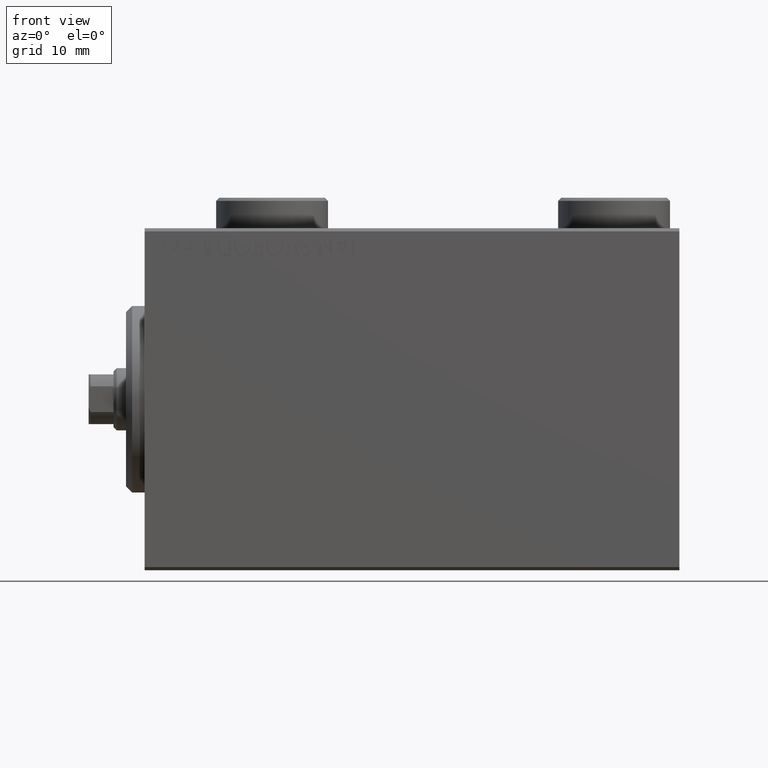
[diagram: clean part render]
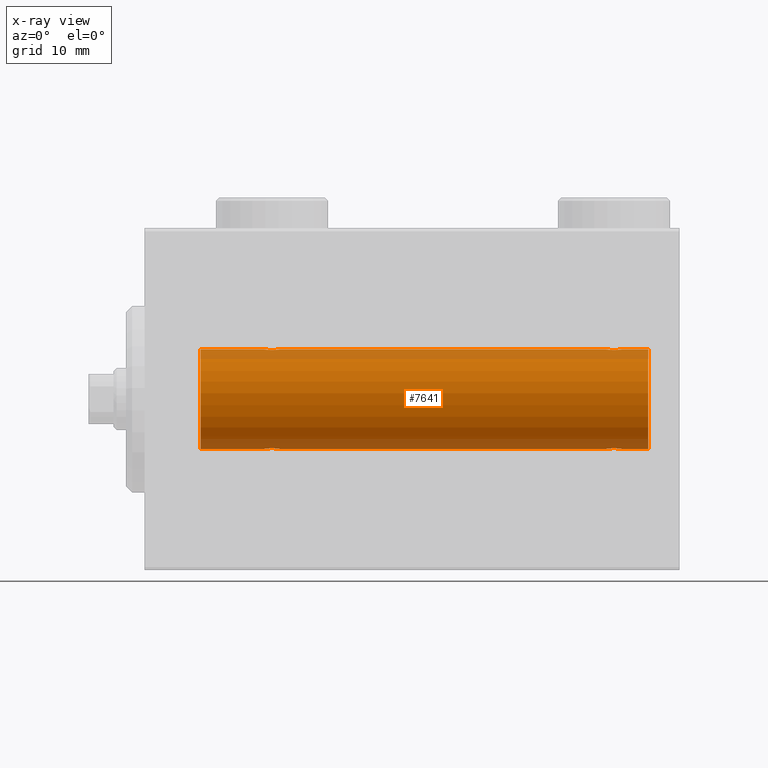
[diagram: x-ray — body ghosted, one internal face saturated and labeled with its STEP entity id]
A machine part, front view, then the same camera in x-ray: the body is ghosted and one INTERNAL B-rep face — a face not visible from any outside direction — is saturated and labeled: STEP entity #7641.
In plain terms, the highlighted cylindrical surface (partial cylindrical patch) has radius 8 mm, axis along (-1, -0, -0).
Its self-contained STEP definition (entity closure, byte-faithful):
#590 = CARTESIAN_POINT ( 'NONE',  ( 74.25000000000001421, -4.052102368803510290E-23, 7.999999999999998224 ) ) ;
#1038 = CARTESIAN_POINT ( 'NONE',  ( 74.87285837165016744, -1.084361243153322940, 7.926301147147063908 ) ) ;
#2012 = CARTESIAN_POINT ( 'NONE',  ( 76.75000000000001421, -0.1632520343443081834, -8.000000000000000000 ) ) ;
#2148 = CARTESIAN_POINT ( 'NONE',  ( 19.87056207267771413, -1.092287957405118970, -7.925333492638526600 ) ) ;
#2716 = CARTESIAN_POINT ( 'NONE',  ( 21.75000000000000711, -0.1654128203352893955, 8.000000000000001776 ) ) ;
#3151 = CARTESIAN_POINT ( 'NONE',  ( 76.49958686675914521, -0.7680324342712141483, -7.963892330120035723 ) ) ;
#3176 = CARTESIAN_POINT ( 'NONE',  ( 19.67312100220859605, -0.9409612394163517912, 7.944680966683013601 ) ) ;
#3375 = CARTESIAN_POINT ( 'NONE',  ( 75.66599605016013186, -1.249894643705230068, -7.901756981264361102 ) ) ;
#3401 = CARTESIAN_POINT ( 'NONE',  ( 20.17169333885885862, -1.217212176555599878, 7.907113222863031865 ) ) ;
#3695 = VECTOR ( 'NONE', #11106, 1000.000000000000000 ) ;
#3817 = CARTESIAN_POINT ( 'NONE',  ( 76.49841755665750043, -0.7695044314719109435, 7.963745725343518878 ) ) ;
#3822 = B_SPLINE_CURVE_WITH_KNOTS ( 'NONE', 3,
 ( #26267, #29268, #19362, #39669, #27807, #38433, #20443, #26719, #5582, #20887, #14009, #6437, #41892, #2148, #17225, #40805, #31274, #42108, #12492, #9883 ),
 .UNSPECIFIED., .F., .F.,
 ( 4, 2, 2, 2, 2, 2, 2, 2, 2, 4 ),
 ( 0.003914068143704951298, 0.004403205918210062117, 0.004892343692715172936, 0.005136912579967725309, 0.005381481467220276815, 0.005870619241725390236, 0.006359757016230503657, 0.006848894790735617077, 0.007338032565240730498, 0.007827170339745843919 ),
 .UNSPECIFIED. ) ;
#3904 = LINE ( 'NONE', #24368, #4893 ) ;
#3968 = CARTESIAN_POINT ( 'NONE',  ( 8.999999999999994671, 0.000000000000000000, 0.000000000000000000 ) ) ;
#4194 = DIRECTION ( 'NONE',  ( 0.000000000000000000, 0.000000000000000000, 1.000000000000000000 ) ) ;
#4239 = AXIS2_PLACEMENT_3D ( 'NONE', #11514, #11282, #22286 ) ;
#4702 = CARTESIAN_POINT ( 'NONE',  ( 74.50041313324086900, -0.7680324342712208097, 7.963892330120033947 ) ) ;
#4893 = VECTOR ( 'NONE', #27832, 1000.000000000000000 ) ;
#5137 = CARTESIAN_POINT ( 'NONE',  ( 21.75000000000000355, 2.367508772235555199E-16, 7.999999999999998224 ) ) ;
#5447 = CARTESIAN_POINT ( 'NONE',  ( 76.75000000000001421, 9.797173987969553159E-16, -7.999999999999998224 ) ) ;
#5582 = CARTESIAN_POINT ( 'NONE',  ( 21.05544625654724200, -1.122809931695431640, -7.920878051565290789 ) ) ;
#5846 = LINE ( 'NONE', #29996, #13302 ) ;
#6437 = CARTESIAN_POINT ( 'NONE',  ( 20.33559448851098850, -1.250104850332076634, -7.901723728054487417 ) ) ;
#6598 = CARTESIAN_POINT ( 'NONE',  ( 74.73184514123552447, -0.9994562523959246159, -7.938165420771276182 ) ) ;
#7023 = EDGE_CURVE ( 'NONE', #22198, #30068, #17386, .T. ) ;
#7271 = CARTESIAN_POINT ( 'NONE',  ( 76.71666607977185492, -0.3297258132310484924, 7.994620111903502746 ) ) ;
#7438 = VERTEX_POINT ( 'NONE', #21875 ) ;
#7485 = CARTESIAN_POINT ( 'NONE',  ( 74.67312100220860316, -0.9409612394163545668, 7.944680966683010936 ) ) ;
#7641 = ADVANCED_FACE ( 'NONE', ( #16591 ), #37782, .F. ) ;
#7708 = CARTESIAN_POINT ( 'NONE',  ( 74.73732994206311275, -0.9937204387496767488, 7.938174152191988853 ) ) ;
#7770 = DIRECTION ( 'NONE',  ( -1.000000000000000000, -0.000000000000000000, -0.000000000000000000 ) ) ;
#7922 = CIRCLE ( 'NONE', #4239, 7.999999999999998224 ) ;
#7980 = VECTOR ( 'NONE', #7770, 1000.000000000000000 ) ;
#8323 = CARTESIAN_POINT ( 'NONE',  ( 81.00000000000000000, 0.000000000000000000, 7.999999999999998224 ) ) ;
#9883 = CARTESIAN_POINT ( 'NONE',  ( 19.25000000000000711, -3.107364149877583097E-15, -7.999999999999998224 ) ) ;
#10071 = CARTESIAN_POINT ( 'NONE',  ( 20.82701716371747480, -1.217515856520238637, 7.907063872927298398 ) ) ;
#10270 = CARTESIAN_POINT ( 'NONE',  ( 75.17298283628255717, -1.217515856520248407, -7.907063872927295733 ) ) ;
#10883 = DIRECTION ( 'NONE',  ( -1.000000000000000000, -0.000000000000000000, -0.000000000000000000 ) ) ;
#10932 = CARTESIAN_POINT ( 'NONE',  ( 75.82701716371747125, -1.217515856520240192, 7.907063872927293957 ) ) ;
#11106 = DIRECTION ( 'NONE',  ( -1.000000000000000000, -0.000000000000000000, -0.000000000000000000 ) ) ;
#11146 = VERTEX_POINT ( 'NONE', #38666 ) ;
#11163 = CARTESIAN_POINT ( 'NONE',  ( 81.00000000000000000, 9.797174393178823685E-16, -7.999999999999998224 ) ) ;
#11282 = DIRECTION ( 'NONE',  ( -1.000000000000000000, 0.000000000000000000, 0.000000000000000000 ) ) ;
#11514 = CARTESIAN_POINT ( 'NONE',  ( 81.00000000000000000, 0.000000000000000000, 0.000000000000000000 ) ) ;
#11611 = CARTESIAN_POINT ( 'NONE',  ( 76.75000000000001421, 3.826567769925454797E-16, 7.999999999999998224 ) ) ;
#11779 = LINE ( 'NONE', #8323, #18244 ) ;
#12396 = B_SPLINE_CURVE_WITH_KNOTS ( 'NONE', 3,
 ( #38388, #29903, #31458, #37923, #45539, #3176, #44855, #37696, #31005, #3401, #13512, #13965, #10071, #44001, #41612, #13063, #38159, #27076, #2716, #22764 ),
 .UNSPECIFIED., .F., .F.,
 ( 4, 2, 2, 2, 2, 2, 2, 2, 2, 4 ),
 ( 0.003914068143704974717, 0.004403205918210087270, 0.004892343692715199824, 0.005136912579967756534, 0.005381481467220313245, 0.005870619241725426665, 0.006359757016230540086, 0.006848894790735652639, 0.007338032565240766060, 0.007827170339745878613 ),
 .UNSPECIFIED. ) ;
#12492 = CARTESIAN_POINT ( 'NONE',  ( 19.25000000000000711, -0.1654128203352910609, -7.999999999999998224 ) ) ;
#12518 = VECTOR ( 'NONE', #10883, 1000.000000000000000 ) ;
#13063 = CARTESIAN_POINT ( 'NONE',  ( 21.49841755665748622, -0.7695044314719063916, 7.963745725343518878 ) ) ;
#13302 = VECTOR ( 'NONE', #37384, 1000.000000000000000 ) ;
#13512 = CARTESIAN_POINT ( 'NONE',  ( 20.33400394983990722, -1.249894643705219410, 7.901756981264364654 ) ) ;
#13712 = CARTESIAN_POINT ( 'NONE',  ( 74.50158244334251378, -0.7695044314719188261, -7.963745725343513548 ) ) ;
#13940 = CARTESIAN_POINT ( 'NONE',  ( 76.12714162834984677, -1.084361243153331378, -7.926301147147065684 ) ) ;
#13965 = CARTESIAN_POINT ( 'NONE',  ( 20.66440551148902571, -1.250104850332075523, 7.901723728054487417 ) ) ;
#14009 = CARTESIAN_POINT ( 'NONE',  ( 20.66599605016009988, -1.249894643705219854, -7.901756981264366431 ) ) ;
#14046 = VERTEX_POINT ( 'NONE', #5137 ) ;
#14489 = EDGE_CURVE ( 'NONE', #26878, #14046, #12396, .T. ) ;
#15283 = VERTEX_POINT ( 'NONE', #44011 ) ;
#15473 = ORIENTED_EDGE ( 'NONE', *, *, #16362, .T. ) ;
#15566 = CARTESIAN_POINT ( 'NONE',  ( 81.00000000000000000, 9.797174393178823685E-16, -7.999999999999998224 ) ) ;
#15567 = EDGE_LOOP ( 'NONE', ( #22168, #15473, #29118, #24333, #18260, #35001, #15631, #26792, #17274, #25625, #17524, #33454 ) ) ;
#15631 = ORIENTED_EDGE ( 'NONE', *, *, #30883, .T. ) ;
#16362 = EDGE_CURVE ( 'NONE', #34382, #34113, #36764, .T. ) ;
#16591 = FACE_OUTER_BOUND ( 'NONE', #15567, .T. ) ;
#16700 = CARTESIAN_POINT ( 'NONE',  ( 76.26267005793691567, -0.9937204387496841873, -7.938174152191988853 ) ) ;
#17225 = CARTESIAN_POINT ( 'NONE',  ( 19.73184514123549249, -0.9994562523959139577, -7.938165420771276182 ) ) ;
#17274 = ORIENTED_EDGE ( 'NONE', *, *, #14489, .T. ) ;
#17386 = B_SPLINE_CURVE_WITH_KNOTS ( 'NONE', 3,
 ( #590, #17816, #36232, #18275, #4702, #7485, #7708, #1038, #42706, #43162, #28627, #21473, #10932, #31654, #42482, #3817, #32539, #7271, #31865, #11611 ),
 .UNSPECIFIED., .F., .F.,
 ( 4, 2, 2, 2, 2, 2, 2, 2, 2, 4 ),
 ( 0.003914068143704953900, 0.004403205918210113291, 0.004892343692715272682, 0.005136912579967838066, 0.005381481467220403450, 0.005870619241725495187, 0.006359757016230586923, 0.006848894790735679527, 0.007338032565240772132, 0.007827170339745864736 ),
 .UNSPECIFIED. ) ;
#17524 = ORIENTED_EDGE ( 'NONE', *, *, #7023, .T. ) ;
#17816 = CARTESIAN_POINT ( 'NONE',  ( 74.25000000000001421, -0.1632520343443091548, 7.999999999999998224 ) ) ;
#17992 = CARTESIAN_POINT ( 'NONE',  ( 81.00000000000000000, 0.000000000000000000, 7.999999999999998224 ) ) ;
#18187 = VERTEX_POINT ( 'NONE', #26886 ) ;
#18244 = VECTOR ( 'NONE', #22318, 1000.000000000000000 ) ;
#18260 = ORIENTED_EDGE ( 'NONE', *, *, #34822, .T. ) ;
#18275 = CARTESIAN_POINT ( 'NONE',  ( 74.40749082144729698, -0.6288424646912691429, 7.976670562295704592 ) ) ;
#19362 = CARTESIAN_POINT ( 'NONE',  ( 21.71715712019488009, -0.3279446529214856687, -7.994696267489723951 ) ) ;
#19643 = VERTEX_POINT ( 'NONE', #35389 ) ;
#20443 = CARTESIAN_POINT ( 'NONE',  ( 21.26267005793691212, -0.9937204387496720859, -7.938174152191990629 ) ) ;
#20887 = CARTESIAN_POINT ( 'NONE',  ( 20.82830666114114848, -1.217212176555599434, -7.907113222863026536 ) ) ;
#20920 = EDGE_CURVE ( 'NONE', #26878, #18187, #45002, .T. ) ;
#20970 = EDGE_CURVE ( 'NONE', #19643, #11146, #25338, .T. ) ;
#21223 = CARTESIAN_POINT ( 'NONE',  ( 19.25000000000000000, -4.052102368803510290E-23, 7.999999999999998224 ) ) ;
#21473 = CARTESIAN_POINT ( 'NONE',  ( 75.66440551148903637, -1.250104850332079520, 7.901723728054485640 ) ) ;
#21536 = AXIS2_PLACEMENT_3D ( 'NONE', #3968, #28112, #4194 ) ;
#21875 = CARTESIAN_POINT ( 'NONE',  ( 81.00000000000000000, 0.000000000000000000, 7.999999999999998224 ) ) ;
#22168 = ORIENTED_EDGE ( 'NONE', *, *, #41339, .F. ) ;
#22198 = VERTEX_POINT ( 'NONE', #24323 ) ;
#22286 = DIRECTION ( 'NONE',  ( 0.000000000000000000, 0.000000000000000000, 1.000000000000000000 ) ) ;
#22318 = DIRECTION ( 'NONE',  ( -1.000000000000000000, -0.000000000000000000, -0.000000000000000000 ) ) ;
#22764 = CARTESIAN_POINT ( 'NONE',  ( 21.75000000000000355, 2.367508772235555199E-16, 7.999999999999998224 ) ) ;
#22851 = EDGE_CURVE ( 'NONE', #7438, #30068, #5846, .T. ) ;
#23252 = DIRECTION ( 'NONE',  ( -1.000000000000000000, -0.000000000000000000, -0.000000000000000000 ) ) ;
#24271 = CARTESIAN_POINT ( 'NONE',  ( 74.28333392022811665, -0.3297258132310611489, -7.994620111903500970 ) ) ;
#24323 = CARTESIAN_POINT ( 'NONE',  ( 74.25000000000001421, -4.052102368803510290E-23, 7.999999999999998224 ) ) ;
#24333 = ORIENTED_EDGE ( 'NONE', *, *, #20970, .T. ) ;
#24368 = CARTESIAN_POINT ( 'NONE',  ( 81.00000000000000000, 9.797174393178823685E-16, -7.999999999999998224 ) ) ;
#24489 = CARTESIAN_POINT ( 'NONE',  ( 76.05544625654724200, -1.122809931695437413, -7.920878051565288125 ) ) ;
#25338 = LINE ( 'NONE', #39424, #12518 ) ;
#25625 = ORIENTED_EDGE ( 'NONE', *, *, #43264, .F. ) ;
#26267 = CARTESIAN_POINT ( 'NONE',  ( 21.75000000000000355, 9.797173987965608855E-16, -7.999999999999998224 ) ) ;
#26288 = CARTESIAN_POINT ( 'NONE',  ( 76.75000000000001421, 9.797173987969553159E-16, -7.999999999999998224 ) ) ;
#26719 = CARTESIAN_POINT ( 'NONE',  ( 21.12714162834985387, -1.084361243153318721, -7.926301147147063908 ) ) ;
#26792 = ORIENTED_EDGE ( 'NONE', *, *, #20920, .F. ) ;
#26878 = VERTEX_POINT ( 'NONE', #21223 ) ;
#26886 = CARTESIAN_POINT ( 'NONE',  ( 8.999999999999994671, 0.000000000000000000, 7.999999999999998224 ) ) ;
#27076 = CARTESIAN_POINT ( 'NONE',  ( 21.71666607977187269, -0.3297258132310499357, 7.994620111903506299 ) ) ;
#27501 = CARTESIAN_POINT ( 'NONE',  ( 74.25000000000001421, -1.276489185009471567E-14, -7.999999999999998224 ) ) ;
#27731 = CARTESIAN_POINT ( 'NONE',  ( 74.40834966532098349, -0.6303134207468096273, -7.976551562999471656 ) ) ;
#27807 = CARTESIAN_POINT ( 'NONE',  ( 21.49958686675913810, -0.7680324342712174790, -7.963892330120039276 ) ) ;
#27832 = DIRECTION ( 'NONE',  ( -1.000000000000000000, -0.000000000000000000, -0.000000000000000000 ) ) ;
#28112 = DIRECTION ( 'NONE',  ( -1.000000000000000000, 0.000000000000000000, 0.000000000000000000 ) ) ;
#28415 = AXIS2_PLACEMENT_3D ( 'NONE', #44487, #23252, #33867 ) ;
#28627 = CARTESIAN_POINT ( 'NONE',  ( 75.33400394983992499, -1.249894643705222297, 7.901756981264366431 ) ) ;
#29118 = ORIENTED_EDGE ( 'NONE', *, *, #31357, .T. ) ;
#29268 = CARTESIAN_POINT ( 'NONE',  ( 21.75000000000000355, -0.1632520343443068511, -7.999999999999998224 ) ) ;
#29903 = CARTESIAN_POINT ( 'NONE',  ( 19.25000000000000355, -0.1632520343443079336, 8.000000000000000000 ) ) ;
#29996 = CARTESIAN_POINT ( 'NONE',  ( 81.00000000000000000, 0.000000000000000000, 7.999999999999998224 ) ) ;
#30068 = VERTEX_POINT ( 'NONE', #40503 ) ;
#30883 = EDGE_CURVE ( 'NONE', #15283, #18187, #41460, .T. ) ;
#30969 = B_SPLINE_CURVE_WITH_KNOTS ( 'NONE', 3,
 ( #5447, #2012, #30976, #42040, #3151, #31203, #16700, #13940, #24489, #45281, #3375, #37893, #10270, #34661, #6598, #13712, #27731, #24271, #38580, #27501 ),
 .UNSPECIFIED., .F., .F.,
 ( 4, 2, 2, 2, 2, 2, 2, 2, 2, 4 ),
 ( 0.003914068143704947829, 0.004403205918210036963, 0.004892343692715126965, 0.005136912579967671533, 0.005381481467220216100, 0.005870619241725345133, 0.006359757016230472432, 0.006848894790735599730, 0.007338032565240728763, 0.007827170339745857797 ),
 .UNSPECIFIED. ) ;
#30976 = CARTESIAN_POINT ( 'NONE',  ( 76.71715712019489786, -0.3279446529214858908, -7.994696267489722175 ) ) ;
#31005 = CARTESIAN_POINT ( 'NONE',  ( 19.94455374345276155, -1.122809931695431640, 7.920878051565288125 ) ) ;
#31203 = CARTESIAN_POINT ( 'NONE',  ( 76.32687899779143947, -0.9409612394163503479, -7.944680966683013601 ) ) ;
#31274 = CARTESIAN_POINT ( 'NONE',  ( 19.40834966532100481, -0.6303134207467991912, -7.976551562999473433 ) ) ;
#31357 = EDGE_CURVE ( 'NONE', #34113, #19643, #30969, .T. ) ;
#31458 = CARTESIAN_POINT ( 'NONE',  ( 19.28284287980512346, -0.3279446529214880002, 7.994696267489722175 ) ) ;
#31654 = CARTESIAN_POINT ( 'NONE',  ( 76.12943792732230008, -1.092287957405119414, 7.925333492638526600 ) ) ;
#31865 = CARTESIAN_POINT ( 'NONE',  ( 76.74999999999998579, -0.1654128203352888959, 7.999999999999998224 ) ) ;
#32539 = CARTESIAN_POINT ( 'NONE',  ( 76.59165033467904493, -0.6303134207467974148, 7.976551562999476985 ) ) ;
#33454 = ORIENTED_EDGE ( 'NONE', *, *, #22851, .F. ) ;
#33867 = DIRECTION ( 'NONE',  ( 0.000000000000000000, 0.000000000000000000, 1.000000000000000000 ) ) ;
#34113 = VERTEX_POINT ( 'NONE', #26288 ) ;
#34382 = VERTEX_POINT ( 'NONE', #11163 ) ;
#34661 = CARTESIAN_POINT ( 'NONE',  ( 74.87056207267772834, -1.092287957405127408, -7.925333492638528377 ) ) ;
#34822 = EDGE_CURVE ( 'NONE', #11146, #36567, #3822, .T. ) ;
#35001 = ORIENTED_EDGE ( 'NONE', *, *, #39162, .T. ) ;
#35389 = CARTESIAN_POINT ( 'NONE',  ( 74.25000000000001421, -1.276489185009471567E-14, -7.999999999999998224 ) ) ;
#36232 = CARTESIAN_POINT ( 'NONE',  ( 74.28284287980513056, -0.3279446529214929407, 7.994696267489723951 ) ) ;
#36567 = VERTEX_POINT ( 'NONE', #37594 ) ;
#36764 = LINE ( 'NONE', #15566, #7980 ) ;
#37384 = DIRECTION ( 'NONE',  ( -1.000000000000000000, -0.000000000000000000, -0.000000000000000000 ) ) ;
#37594 = CARTESIAN_POINT ( 'NONE',  ( 19.25000000000000711, -3.107364149877583097E-15, -7.999999999999998224 ) ) ;
#37696 = CARTESIAN_POINT ( 'NONE',  ( 19.87285837165014613, -1.084361243153319387, 7.926301147147063908 ) ) ;
#37782 = CYLINDRICAL_SURFACE ( 'NONE', #28415, 7.999999999999998224 ) ;
#37893 = CARTESIAN_POINT ( 'NONE',  ( 75.33559448851102047, -1.250104850332087736, -7.901723728054487417 ) ) ;
#37923 = CARTESIAN_POINT ( 'NONE',  ( 19.40749082144729343, -0.6288424646912651461, 7.976670562295706368 ) ) ;
#38159 = CARTESIAN_POINT ( 'NONE',  ( 21.59165033467900940, -0.6303134207467964156, 7.976551562999473433 ) ) ;
#38388 = CARTESIAN_POINT ( 'NONE',  ( 19.25000000000000000, -4.052102368803510290E-23, 7.999999999999998224 ) ) ;
#38433 = CARTESIAN_POINT ( 'NONE',  ( 21.32687899779140750, -0.9409612394163509030, -7.944680966683015377 ) ) ;
#38580 = CARTESIAN_POINT ( 'NONE',  ( 74.25000000000002842, -0.1654128203353027737, -7.999999999999996447 ) ) ;
#38666 = CARTESIAN_POINT ( 'NONE',  ( 21.75000000000000355, 9.797173987965608855E-16, -7.999999999999998224 ) ) ;
#39162 = EDGE_CURVE ( 'NONE', #36567, #15283, #3904, .T. ) ;
#39424 = CARTESIAN_POINT ( 'NONE',  ( 81.00000000000000000, 9.797174393178823685E-16, -7.999999999999998224 ) ) ;
#39669 = CARTESIAN_POINT ( 'NONE',  ( 21.59250917855271013, -0.6288424646912625926, -7.976670562295708145 ) ) ;
#40503 = CARTESIAN_POINT ( 'NONE',  ( 76.75000000000001421, 3.826567769925454797E-16, 7.999999999999998224 ) ) ;
#40805 = CARTESIAN_POINT ( 'NONE',  ( 19.50158244334252089, -0.7695044314719098333, -7.963745725343515325 ) ) ;
#41339 = EDGE_CURVE ( 'NONE', #34382, #7438, #7922, .T. ) ;
#41460 = CIRCLE ( 'NONE', #21536, 7.999999999999998224 ) ;
#41612 = CARTESIAN_POINT ( 'NONE',  ( 21.26815485876451461, -0.9994562523959116263, 7.938165420771274405 ) ) ;
#41892 = CARTESIAN_POINT ( 'NONE',  ( 20.17298283628253230, -1.217515856520239970, -7.907063872927298398 ) ) ;
#42040 = CARTESIAN_POINT ( 'NONE',  ( 76.59250917855271723, -0.6288424646912651461, -7.976670562295706368 ) ) ;
#42108 = CARTESIAN_POINT ( 'NONE',  ( 19.28333392022813797, -0.3297258132310537104, -7.994620111903500970 ) ) ;
#42482 = CARTESIAN_POINT ( 'NONE',  ( 76.26815485876451817, -0.9994562523959157341, 7.938165420771272629 ) ) ;
#42706 = CARTESIAN_POINT ( 'NONE',  ( 74.94455374345278642, -1.122809931695436525, 7.920878051565286349 ) ) ;
#43162 = CARTESIAN_POINT ( 'NONE',  ( 75.17169333885887283, -1.217212176555603431, 7.907113222863028312 ) ) ;
#43264 = EDGE_CURVE ( 'NONE', #22198, #14046, #11779, .T. ) ;
#44001 = CARTESIAN_POINT ( 'NONE',  ( 21.12943792732229298, -1.092287957405117194, 7.925333492638530153 ) ) ;
#44011 = CARTESIAN_POINT ( 'NONE',  ( 8.999999999999994671, 9.797174393178823685E-16, -7.999999999999998224 ) ) ;
#44487 = CARTESIAN_POINT ( 'NONE',  ( 81.00000000000000000, 0.000000000000000000, 0.000000000000000000 ) ) ;
#44855 = CARTESIAN_POINT ( 'NONE',  ( 19.73732994206309499, -0.9937204387496718638, 7.938174152191987076 ) ) ;
#45002 = LINE ( 'NONE', #17992, #3695 ) ;
#45281 = CARTESIAN_POINT ( 'NONE',  ( 75.82830666114118401, -1.217212176555608094, -7.907113222863028312 ) ) ;
#45539 = CARTESIAN_POINT ( 'NONE',  ( 19.50041313324087611, -0.7680324342712182561, 7.963892330120039276 ) ) ;